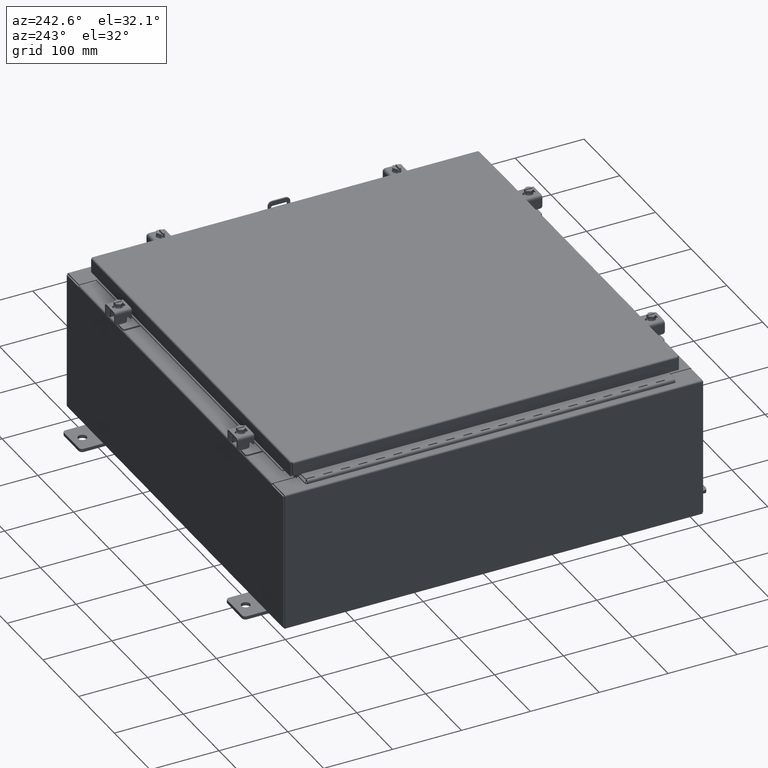
[diagram: clean part render]
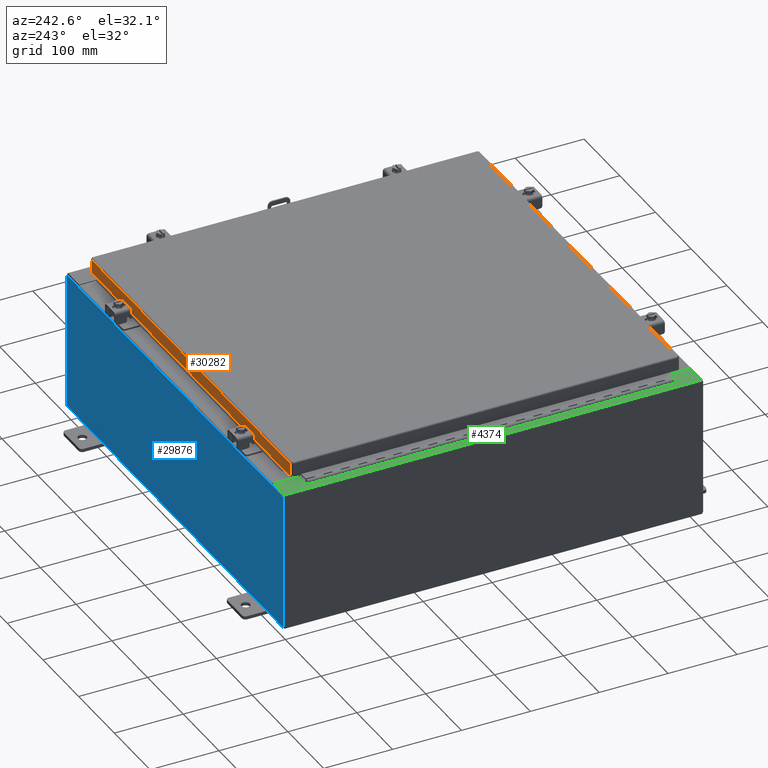
[diagram: same view with three faces highlighted in distinct colors, each labeled with its STEP entity id]
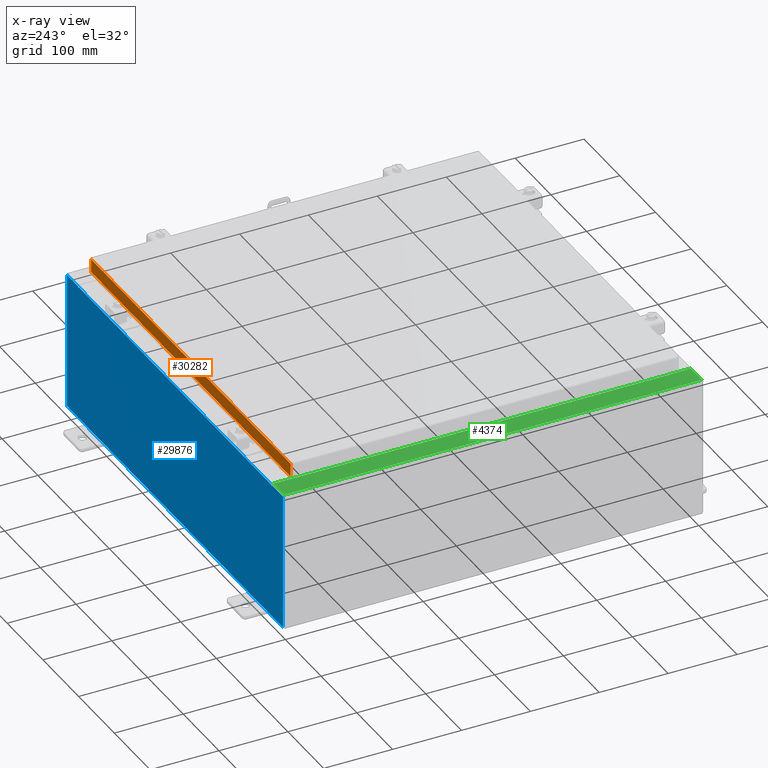
[diagram: x-ray of the same camera — body ghosted, the three highlighted faces saturated]
A machine part, auxiliary view with three faces highlighted in distinct colors.
The next image is the same camera in x-ray (body ghosted, the three faces saturated) — at least one of them is partly hidden behind the body in this view.
Their STEP definitions:

[orange] entity #30282 — the highlighted planar face has unit normal (0, -1, -0).
#222 = EDGE_CURVE ( 'NONE', #4338, #10976, #31821, .T. ) ;
#322 = ORIENTED_EDGE ( 'NONE', *, *, #9019, .F. ) ;
#807 = VERTEX_POINT ( 'NONE', #2444 ) ;
#1117 = DIRECTION ( 'NONE',  ( 1.000000000000000000, -4.379057701015054300E-047, 1.233005954894504400E-016 ) ) ;
#1363 = VECTOR ( 'NONE', #15416, 39.37007874015748100 ) ;
#1379 = CARTESIAN_POINT ( 'NONE',  ( -11.07799999999999900, 11.09399999999999800, -0.08770000000000026400 ) ) ;
#2060 = DIRECTION ( 'NONE',  ( -0.0000000000000000000, 2.818880942772350300E-015, -1.000000000000000000 ) ) ;
#2444 = CARTESIAN_POINT ( 'NONE',  ( 10.23915786437625500, 11.09399999999999200, -0.8500000000000043100 ) ) ;
#2773 = VERTEX_POINT ( 'NONE', #14886 ) ;
#3407 = DIRECTION ( 'NONE',  ( 1.000000000000000000, -0.0000000000000000000, -0.0000000000000000000 ) ) ;
#3988 = CARTESIAN_POINT ( 'NONE',  ( -10.98915786437626700, 11.09399999999999900, -0.8500000000000020900 ) ) ;
#4338 = VERTEX_POINT ( 'NONE', #3988 ) ;
#4433 = VECTOR ( 'NONE', #1117, 39.37007874015748100 ) ;
#5156 = VERTEX_POINT ( 'NONE', #16785 ) ;
#6537 = LINE ( 'NONE', #22475, #13193 ) ;
#6555 = LINE ( 'NONE', #1379, #25771 ) ;
#7638 = CARTESIAN_POINT ( 'NONE',  ( 0.0000000000000000000, 11.09399999999999800, 3.168943672650545400E-014 ) ) ;
#8552 = ORIENTED_EDGE ( 'NONE', *, *, #11383, .F. ) ;
#8657 = VECTOR ( 'NONE', #3407, 39.37007874015748100 ) ;
#9019 = EDGE_CURVE ( 'NONE', #10976, #807, #21976, .T. ) ;
#10976 = VERTEX_POINT ( 'NONE', #27293 ) ;
#11383 = EDGE_CURVE ( 'NONE', #13034, #4338, #6537, .T. ) ;
#12221 = VECTOR ( 'NONE', #26454, 39.37007874015748100 ) ;
#12652 = DIRECTION ( 'NONE',  ( 0.0000000000000000000, 2.818880942772350300E-015, -1.000000000000000000 ) ) ;
#13034 = VERTEX_POINT ( 'NONE', #21985 ) ;
#13193 = VECTOR ( 'NONE', #2060, 39.37007874015748100 ) ;
#14322 = EDGE_CURVE ( 'NONE', #5156, #2773, #18859, .T. ) ;
#14886 = CARTESIAN_POINT ( 'NONE',  ( 10.98915786437626700, 11.09399999999999900, -0.8499999999999999800 ) ) ;
#15055 = FACE_OUTER_BOUND ( 'NONE', #24802, .T. ) ;
#15416 = DIRECTION ( 'NONE',  ( 1.000000000000000000, -4.379057701015054300E-047, 1.233005954894504400E-016 ) ) ;
#15610 = AXIS2_PLACEMENT_3D ( 'NONE', #7638, #27665, #12652 ) ;
#15626 = EDGE_CURVE ( 'NONE', #5156, #13034, #6555, .T. ) ;
#16785 = CARTESIAN_POINT ( 'NONE',  ( 10.98915786437626700, 11.09399999999999800, -0.08770000000000026400 ) ) ;
#18859 = LINE ( 'NONE', #21417, #12221 ) ;
#20578 = ORIENTED_EDGE ( 'NONE', *, *, #15626, .F. ) ;
#21417 = CARTESIAN_POINT ( 'NONE',  ( 10.98915786437626700, 11.09399999999999800, 3.168943672650545400E-014 ) ) ;
#21976 = LINE ( 'NONE', #28357, #8657 ) ;
#21985 = CARTESIAN_POINT ( 'NONE',  ( -10.98915786437626700, 11.09399999999999800, -0.08770000000000026400 ) ) ;
#22087 = EDGE_CURVE ( 'NONE', #807, #2773, #27270, .T. ) ;
#22327 = ORIENTED_EDGE ( 'NONE', *, *, #222, .F. ) ;
#22475 = CARTESIAN_POINT ( 'NONE',  ( -10.98915786437626700, 11.09399999999999800, -0.07470000000000015500 ) ) ;
#23245 = ORIENTED_EDGE ( 'NONE', *, *, #14322, .T. ) ;
#24802 = EDGE_LOOP ( 'NONE', ( #20578, #23245, #27312, #322, #22327, #8552 ) ) ;
#25158 = PLANE ( 'NONE',  #15610 ) ;
#25771 = VECTOR ( 'NONE', #28977, 39.37007874015748100 ) ;
#26454 = DIRECTION ( 'NONE',  ( 0.0000000000000000000, 2.818880942772350300E-015, -1.000000000000000000 ) ) ;
#27270 = LINE ( 'NONE', #30398, #1363 ) ;
#27293 = CARTESIAN_POINT ( 'NONE',  ( -10.23915786437626700, 11.09399999999999200, -0.8500000000000043100 ) ) ;
#27312 = ORIENTED_EDGE ( 'NONE', *, *, #22087, .F. ) ;
#27665 = DIRECTION ( 'NONE',  ( 3.475696988576941300E-031, -1.000000000000000000, -2.818880942772350300E-015 ) ) ;
#28357 = CARTESIAN_POINT ( 'NONE',  ( -10.23915786437626200, 11.09399999999999200, -0.8500000000000043100 ) ) ;
#28977 = DIRECTION ( 'NONE',  ( -1.000000000000000000, -3.475696988576942200E-031, -9.473942235605600700E-046 ) ) ;
#30282 = ADVANCED_FACE ( 'NONE', ( #15055 ), #25158, .F. ) ;
#30398 = CARTESIAN_POINT ( 'NONE',  ( -11.07799999999999900, 11.09399999999999900, -0.8500000000000020900 ) ) ;
#31792 = CARTESIAN_POINT ( 'NONE',  ( -11.07799999999999900, 11.09399999999999900, -0.8500000000000020900 ) ) ;
#31821 = LINE ( 'NONE', #31792, #4433 ) ;

[blue] entity #29876 — the highlighted planar face has unit normal (0, -1, 0).
#251 = EDGE_CURVE ( 'NONE', #9891, #8948, #24424, .T. ) ;
#342 = DIRECTION ( 'NONE',  ( 1.000000000000000000, 0.0000000000000000000, 0.0000000000000000000 ) ) ;
#1255 = DIRECTION ( 'NONE',  ( -0.0000000000000000000, 1.000000000000000000, -0.0000000000000000000 ) ) ;
#1323 = AXIS2_PLACEMENT_3D ( 'NONE', #19005, #1255, #11841 ) ;
#1415 = CARTESIAN_POINT ( 'NONE',  ( -10.63720000000000400, 0.0000000000000000000, 3.912300000000000100 ) ) ;
#1509 = EDGE_CURVE ( 'NONE', #12415, #30743, #14196, .T. ) ;
#1593 = ORIENTED_EDGE ( 'NONE', *, *, #12165, .F. ) ;
#2224 = CARTESIAN_POINT ( 'NONE',  ( -10.67455000000000200, 0.0000000000000000000, 0.0000000000000000000 ) ) ;
#2289 = VECTOR ( 'NONE', #17843, 39.37007874015748100 ) ;
#3653 = VECTOR ( 'NONE', #9185, 39.37007874015748100 ) ;
#4621 = ORIENTED_EDGE ( 'NONE', *, *, #27464, .T. ) ;
#4637 = DIRECTION ( 'NONE',  ( 1.000000000000000000, 0.0000000000000000000, 0.0000000000000000000 ) ) ;
#4653 = DIRECTION ( 'NONE',  ( 0.0000000000000000000, 0.0000000000000000000, 1.000000000000000000 ) ) ;
#4779 = VECTOR ( 'NONE', #30101, 39.37007874015748100 ) ;
#5331 = LINE ( 'NONE', #16549, #17839 ) ;
#5613 = LINE ( 'NONE', #2224, #26379 ) ;
#6088 = FACE_OUTER_BOUND ( 'NONE', #10020, .T. ) ;
#6182 = LINE ( 'NONE', #22317, #31997 ) ;
#6559 = CARTESIAN_POINT ( 'NONE',  ( 10.63720000000000400, 0.0000000000000000000, 3.912300000000000100 ) ) ;
#7115 = EDGE_CURVE ( 'NONE', #22743, #8356, #8845, .T. ) ;
#7914 = CARTESIAN_POINT ( 'NONE',  ( 11.92530000000000000, 0.0000000000000000000, 3.925300000000000500 ) ) ;
#7934 = EDGE_CURVE ( 'NONE', #26040, #15652, #16903, .T. ) ;
#8032 = EDGE_CURVE ( 'NONE', #12415, #31780, #22033, .T. ) ;
#8191 = EDGE_CURVE ( 'NONE', #23772, #9891, #17290, .T. ) ;
#8356 = VERTEX_POINT ( 'NONE', #14523 ) ;
#8845 = CIRCLE ( 'NONE', #1323, 0.01867499999999949400 ) ;
#8948 = VERTEX_POINT ( 'NONE', #12609 ) ;
#9139 = VECTOR ( 'NONE', #20208, 39.37007874015748100 ) ;
#9185 = DIRECTION ( 'NONE',  ( 1.000000000000000000, 0.0000000000000000000, 0.0000000000000000000 ) ) ;
#9761 = CARTESIAN_POINT ( 'NONE',  ( -11.92530000000000000, 0.0000000000000000000, -3.925299999999999600 ) ) ;
#9891 = VERTEX_POINT ( 'NONE', #17481 ) ;
#9936 = AXIS2_PLACEMENT_3D ( 'NONE', #29228, #14229, #31734 ) ;
#10020 = EDGE_LOOP ( 'NONE', ( #17101, #22738, #23600, #24205, #18648, #16408, #1593, #29030, #4621, #21091, #27544, #24107 ) ) ;
#11057 = VECTOR ( 'NONE', #342, 39.37007874015748100 ) ;
#11841 = DIRECTION ( 'NONE',  ( 0.0000000000000000000, 0.0000000000000000000, -1.000000000000000000 ) ) ;
#12165 = EDGE_CURVE ( 'NONE', #26040, #22743, #5331, .T. ) ;
#12415 = VERTEX_POINT ( 'NONE', #27947 ) ;
#12609 = CARTESIAN_POINT ( 'NONE',  ( -10.67455000000000200, 0.0000000000000000000, 3.925300000000000500 ) ) ;
#13543 = DIRECTION ( 'NONE',  ( 0.0000000000000000000, -1.000000000000000000, 0.0000000000000000000 ) ) ;
#14196 = LINE ( 'NONE', #18045, #9139 ) ;
#14229 = DIRECTION ( 'NONE',  ( -0.0000000000000000000, 1.000000000000000000, -0.0000000000000000000 ) ) ;
#14523 = CARTESIAN_POINT ( 'NONE',  ( 10.63720000000000400, 0.0000000000000000000, 3.874949999999999200 ) ) ;
#15023 = CIRCLE ( 'NONE', #9936, 0.01867499999999949400 ) ;
#15652 = VERTEX_POINT ( 'NONE', #24192 ) ;
#16408 = ORIENTED_EDGE ( 'NONE', *, *, #7115, .F. ) ;
#16549 = CARTESIAN_POINT ( 'NONE',  ( 10.67454999999983300, 0.0000000000000000000, -4.633214197254590000E-013 ) ) ;
#16903 = LINE ( 'NONE', #30791, #11057 ) ;
#17101 = ORIENTED_EDGE ( 'NONE', *, *, #24886, .F. ) ;
#17290 = LINE ( 'NONE', #20277, #4779 ) ;
#17481 = CARTESIAN_POINT ( 'NONE',  ( -11.92530000000000000, 0.0000000000000000000, 3.925300000000000500 ) ) ;
#17542 = LINE ( 'NONE', #29276, #22661 ) ;
#17696 = VERTEX_POINT ( 'NONE', #26360 ) ;
#17839 = VECTOR ( 'NONE', #26599, 39.37007874015748100 ) ;
#17843 = DIRECTION ( 'NONE',  ( 0.0000000000000000000, 0.0000000000000000000, -1.000000000000000000 ) ) ;
#18045 = CARTESIAN_POINT ( 'NONE',  ( -10.63720000000000400, 0.0000000000000000000, 0.0000000000000000000 ) ) ;
#18386 = EDGE_CURVE ( 'NONE', #30743, #17696, #15023, .T. ) ;
#18461 = CARTESIAN_POINT ( 'NONE',  ( 0.0000000000000000000, 0.0000000000000000000, 0.0000000000000000000 ) ) ;
#18648 = ORIENTED_EDGE ( 'NONE', *, *, #28451, .F. ) ;
#19005 = CARTESIAN_POINT ( 'NONE',  ( 10.65587500000000200, 0.0000000000000000000, 3.874949999999999200 ) ) ;
#20208 = DIRECTION ( 'NONE',  ( 0.0000000000000000000, 0.0000000000000000000, -1.000000000000000000 ) ) ;
#20277 = CARTESIAN_POINT ( 'NONE',  ( -11.92530000000000000, 0.0000000000000000000, 3.925300000000000500 ) ) ;
#21091 = ORIENTED_EDGE ( 'NONE', *, *, #28323, .T. ) ;
#21233 = VECTOR ( 'NONE', #4637, 39.37007874015748100 ) ;
#22033 = LINE ( 'NONE', #1415, #21233 ) ;
#22234 = CARTESIAN_POINT ( 'NONE',  ( 10.67455000000000200, 0.0000000000000000000, 3.925300000000000500 ) ) ;
#22317 = CARTESIAN_POINT ( 'NONE',  ( 10.63720000000000400, 0.0000000000000000000, 0.0000000000000000000 ) ) ;
#22661 = VECTOR ( 'NONE', #31774, 39.37007874015748100 ) ;
#22738 = ORIENTED_EDGE ( 'NONE', *, *, #18386, .F. ) ;
#22743 = VERTEX_POINT ( 'NONE', #22858 ) ;
#22858 = CARTESIAN_POINT ( 'NONE',  ( 10.67455000000000200, 0.0000000000000000000, 3.874949999999999200 ) ) ;
#23600 = ORIENTED_EDGE ( 'NONE', *, *, #1509, .F. ) ;
#23772 = VERTEX_POINT ( 'NONE', #9761 ) ;
#23940 = CARTESIAN_POINT ( 'NONE',  ( -11.92530000000000000, 0.0000000000000000000, 3.925300000000000500 ) ) ;
#24107 = ORIENTED_EDGE ( 'NONE', *, *, #251, .T. ) ;
#24192 = CARTESIAN_POINT ( 'NONE',  ( 11.92530000000000000, 0.0000000000000000000, 3.925300000000000500 ) ) ;
#24205 = ORIENTED_EDGE ( 'NONE', *, *, #8032, .T. ) ;
#24424 = LINE ( 'NONE', #23940, #3653 ) ;
#24886 = EDGE_CURVE ( 'NONE', #17696, #8948, #5613, .T. ) ;
#25791 = CARTESIAN_POINT ( 'NONE',  ( 11.92530000000000000, 0.0000000000000000000, -3.925299999999999600 ) ) ;
#26040 = VERTEX_POINT ( 'NONE', #22234 ) ;
#26360 = CARTESIAN_POINT ( 'NONE',  ( -10.67455000000000200, 0.0000000000000000000, 3.874949999999999200 ) ) ;
#26379 = VECTOR ( 'NONE', #4653, 39.37007874015748100 ) ;
#26599 = DIRECTION ( 'NONE',  ( -4.340572780400004900E-014, 0.0000000000000000000, -1.000000000000000000 ) ) ;
#26934 = VERTEX_POINT ( 'NONE', #25791 ) ;
#27464 = EDGE_CURVE ( 'NONE', #15652, #26934, #28167, .T. ) ;
#27544 = ORIENTED_EDGE ( 'NONE', *, *, #8191, .T. ) ;
#27947 = CARTESIAN_POINT ( 'NONE',  ( -10.63720000000000400, 0.0000000000000000000, 3.912300000000000100 ) ) ;
#28167 = LINE ( 'NONE', #7914, #2289 ) ;
#28323 = EDGE_CURVE ( 'NONE', #26934, #23772, #17542, .T. ) ;
#28451 = EDGE_CURVE ( 'NONE', #8356, #31780, #6182, .T. ) ;
#28535 = PLANE ( 'NONE',  #30262 ) ;
#29030 = ORIENTED_EDGE ( 'NONE', *, *, #7934, .T. ) ;
#29228 = CARTESIAN_POINT ( 'NONE',  ( -10.65587500000000200, 0.0000000000000000000, 3.874949999999999200 ) ) ;
#29276 = CARTESIAN_POINT ( 'NONE',  ( -11.92530000000000000, 0.0000000000000000000, -3.925299999999999600 ) ) ;
#29465 = CARTESIAN_POINT ( 'NONE',  ( -10.63720000000000400, 0.0000000000000000000, 3.874949999999999200 ) ) ;
#29876 = ADVANCED_FACE ( 'NONE', ( #6088 ), #28535, .F. ) ;
#30101 = DIRECTION ( 'NONE',  ( -0.0000000000000000000, -0.0000000000000000000, 1.000000000000000000 ) ) ;
#30262 = AXIS2_PLACEMENT_3D ( 'NONE', #18461, #13543, #31030 ) ;
#30743 = VERTEX_POINT ( 'NONE', #29465 ) ;
#30791 = CARTESIAN_POINT ( 'NONE',  ( -11.92530000000000000, 0.0000000000000000000, 3.925300000000000500 ) ) ;
#31030 = DIRECTION ( 'NONE',  ( 0.0000000000000000000, -0.0000000000000000000, -1.000000000000000000 ) ) ;
#31734 = DIRECTION ( 'NONE',  ( 0.0000000000000000000, 0.0000000000000000000, -1.000000000000000000 ) ) ;
#31774 = DIRECTION ( 'NONE',  ( -1.000000000000000000, -0.0000000000000000000, -0.0000000000000000000 ) ) ;
#31780 = VERTEX_POINT ( 'NONE', #6559 ) ;
#31997 = VECTOR ( 'NONE', #32340, 39.37007874015748100 ) ;
#32340 = DIRECTION ( 'NONE',  ( 0.0000000000000000000, 0.0000000000000000000, 1.000000000000000000 ) ) ;

[green] entity #4374 — the highlighted planar face has unit normal (0, 0, -1).
#1027 = ORIENTED_EDGE ( 'NONE', *, *, #15121, .F. ) ;
#1030 = EDGE_CURVE ( 'NONE', #1554, #13699, #1687, .T. ) ;
#1554 = VERTEX_POINT ( 'NONE', #11584 ) ;
#1687 = LINE ( 'NONE', #13233, #26786 ) ;
#1825 = DIRECTION ( 'NONE',  ( 1.000000000000000000, 0.0000000000000000000, 2.170286390199955400E-014 ) ) ;
#1966 = CARTESIAN_POINT ( 'NONE',  ( -10.75005000000003400, 10.61242499999999800, 7.925300000000006200 ) ) ;
#2256 = CARTESIAN_POINT ( 'NONE',  ( -10.75005000000003400, 10.63109999999999600, 7.925300000000008900 ) ) ;
#3112 = LINE ( 'NONE', #13792, #28932 ) ;
#3416 = LINE ( 'NONE', #4363, #29236 ) ;
#3861 = EDGE_CURVE ( 'NONE', #9844, #6634, #3112, .T. ) ;
#3969 = CARTESIAN_POINT ( 'NONE',  ( -5.679009539024888300E-014, 11.92529999999999800, 7.925300000000085300 ) ) ;
#4038 = EDGE_CURVE ( 'NONE', #30310, #13406, #5053, .T. ) ;
#4363 = CARTESIAN_POINT ( 'NONE',  ( -10.75005000000003400, -10.63109999999998800, 7.925300000000006200 ) ) ;
#4374 = ADVANCED_FACE ( 'NONE', ( #23853 ), #22875, .F. ) ;
#4443 = VERTEX_POINT ( 'NONE', #16143 ) ;
#4513 = DIRECTION ( 'NONE',  ( 1.000000000000000000, 0.0000000000000000000, 0.0000000000000000000 ) ) ;
#4832 = ORIENTED_EDGE ( 'NONE', *, *, #18457, .F. ) ;
#5053 = LINE ( 'NONE', #12082, #18357 ) ;
#5068 = CARTESIAN_POINT ( 'NONE',  ( -10.69970000000003200, 0.0000000000000000000, 7.925300000000008900 ) ) ;
#5441 = CARTESIAN_POINT ( 'NONE',  ( -10.75005000000003400, 10.59374999999999800, 7.925300000000008900 ) ) ;
#5443 = LINE ( 'NONE', #3969, #31236 ) ;
#5603 = LINE ( 'NONE', #26554, #19672 ) ;
#5899 = ORIENTED_EDGE ( 'NONE', *, *, #18213, .T. ) ;
#5984 = VERTEX_POINT ( 'NONE', #9584 ) ;
#6634 = VERTEX_POINT ( 'NONE', #2256 ) ;
#7158 = EDGE_CURVE ( 'NONE', #1554, #19353, #20577, .T. ) ;
#7220 = VECTOR ( 'NONE', #10987, 39.37007874015748100 ) ;
#7260 = DIRECTION ( 'NONE',  ( -7.132762385546384700E-015, -0.0000000000000000000, 1.000000000000000000 ) ) ;
#7356 = CARTESIAN_POINT ( 'NONE',  ( -10.71270000000003500, -10.59374999999998900, 7.925300000000006200 ) ) ;
#7814 = ORIENTED_EDGE ( 'NONE', *, *, #4038, .F. ) ;
#8467 = VECTOR ( 'NONE', #10726, 39.37007874015748100 ) ;
#9584 = CARTESIAN_POINT ( 'NONE',  ( -10.75005000000003400, -10.63109999999998800, 7.925300000000008900 ) ) ;
#9592 = LINE ( 'NONE', #23491, #7220 ) ;
#9668 = VERTEX_POINT ( 'NONE', #5441 ) ;
#9844 = VERTEX_POINT ( 'NONE', #13039 ) ;
#9952 = DIRECTION ( 'NONE',  ( -1.000000000000000000, 0.0000000000000000000, -7.132762385546384700E-015 ) ) ;
#10181 = DIRECTION ( 'NONE',  ( 7.132762385546384700E-015, 0.0000000000000000000, -1.000000000000000000 ) ) ;
#10237 = CARTESIAN_POINT ( 'NONE',  ( -11.91230000000003200, 11.92529999999999800, 7.925300000000000000 ) ) ;
#10726 = DIRECTION ( 'NONE',  ( 1.000000000000000000, 0.0000000000000000000, 0.0000000000000000000 ) ) ;
#10987 = DIRECTION ( 'NONE',  ( 0.0000000000000000000, 1.000000000000000000, 0.0000000000000000000 ) ) ;
#11151 = CARTESIAN_POINT ( 'NONE',  ( -10.69970000000003200, -11.92530000000000000, 7.925300000000008900 ) ) ;
#11274 = VERTEX_POINT ( 'NONE', #11686 ) ;
#11584 = CARTESIAN_POINT ( 'NONE',  ( -11.91230000000003200, -11.92530000000000000, 7.925300000000000000 ) ) ;
#11631 = DIRECTION ( 'NONE',  ( -0.0000000000000000000, 1.000000000000000000, -0.0000000000000000000 ) ) ;
#11686 = CARTESIAN_POINT ( 'NONE',  ( -10.69970000000003200, -10.63109999999999100, 7.925300000000008900 ) ) ;
#12082 = CARTESIAN_POINT ( 'NONE',  ( -10.71270000000003500, 10.59374999999999300, 7.925300000000006200 ) ) ;
#12720 = EDGE_LOOP ( 'NONE', ( #14820, #5899, #16968, #32211, #23702, #22372, #17010, #1027, #28750, #7814, #20816, #4832 ) ) ;
#13039 = CARTESIAN_POINT ( 'NONE',  ( -10.69970000000003200, 10.63109999999999600, 7.925300000000008900 ) ) ;
#13233 = CARTESIAN_POINT ( 'NONE',  ( -5.679009539024888300E-014, -11.92530000000000000, 7.925300000000085300 ) ) ;
#13406 = VERTEX_POINT ( 'NONE', #7356 ) ;
#13699 = VERTEX_POINT ( 'NONE', #11151 ) ;
#13792 = CARTESIAN_POINT ( 'NONE',  ( -10.69970000000003200, 10.63109999999999600, 7.925300000000007100 ) ) ;
#14009 = AXIS2_PLACEMENT_3D ( 'NONE', #22282, #7260, #24787 ) ;
#14021 = DIRECTION ( 'NONE',  ( -1.000000000000000000, 0.0000000000000000000, -7.132762385546384700E-015 ) ) ;
#14820 = ORIENTED_EDGE ( 'NONE', *, *, #3861, .F. ) ;
#14925 = EDGE_CURVE ( 'NONE', #30080, #19353, #5443, .T. ) ;
#15121 = EDGE_CURVE ( 'NONE', #4443, #5984, #19890, .T. ) ;
#15273 = CARTESIAN_POINT ( 'NONE',  ( -10.71270000000003500, 10.59374999999999800, 7.925300000000006200 ) ) ;
#15716 = EDGE_CURVE ( 'NONE', #5984, #11274, #3416, .T. ) ;
#16143 = CARTESIAN_POINT ( 'NONE',  ( -10.75005000000003400, -10.59374999999998900, 7.925300000000008900 ) ) ;
#16968 = ORIENTED_EDGE ( 'NONE', *, *, #14925, .T. ) ;
#17010 = ORIENTED_EDGE ( 'NONE', *, *, #15716, .F. ) ;
#18213 = EDGE_CURVE ( 'NONE', #9844, #30080, #9592, .T. ) ;
#18357 = VECTOR ( 'NONE', #23831, 39.37007874015748100 ) ;
#18457 = EDGE_CURVE ( 'NONE', #6634, #9668, #20117, .T. ) ;
#19082 = DIRECTION ( 'NONE',  ( -1.000000000000000000, 0.0000000000000000000, 0.0000000000000000000 ) ) ;
#19312 = EDGE_CURVE ( 'NONE', #13699, #11274, #29830, .T. ) ;
#19353 = VERTEX_POINT ( 'NONE', #10237 ) ;
#19489 = DIRECTION ( 'NONE',  ( -7.132762385546384700E-015, -0.0000000000000000000, 1.000000000000000000 ) ) ;
#19672 = VECTOR ( 'NONE', #19082, 39.37007874015748100 ) ;
#19890 = CIRCLE ( 'NONE', #14009, 0.01867499999999949400 ) ;
#19971 = AXIS2_PLACEMENT_3D ( 'NONE', #1966, #19489, #4513 ) ;
#20052 = DIRECTION ( 'NONE',  ( 0.0000000000000000000, 1.000000000000000000, 0.0000000000000000000 ) ) ;
#20117 = CIRCLE ( 'NONE', #19971, 0.01867499999999949400 ) ;
#20577 = LINE ( 'NONE', #29069, #21371 ) ;
#20816 = ORIENTED_EDGE ( 'NONE', *, *, #29800, .F. ) ;
#21371 = VECTOR ( 'NONE', #11631, 39.37007874015748100 ) ;
#22282 = CARTESIAN_POINT ( 'NONE',  ( -10.75005000000003400, -10.61242499999998900, 7.925300000000006200 ) ) ;
#22292 = CARTESIAN_POINT ( 'NONE',  ( -5.679009539024888300E-014, 0.0000000000000000000, 7.925300000000085300 ) ) ;
#22372 = ORIENTED_EDGE ( 'NONE', *, *, #19312, .T. ) ;
#22875 = PLANE ( 'NONE',  #28370 ) ;
#23491 = CARTESIAN_POINT ( 'NONE',  ( -10.69970000000003200, 0.0000000000000000000, 7.925300000000008900 ) ) ;
#23702 = ORIENTED_EDGE ( 'NONE', *, *, #1030, .T. ) ;
#23831 = DIRECTION ( 'NONE',  ( -0.0000000000000000000, -1.000000000000000000, -0.0000000000000000000 ) ) ;
#23853 = FACE_OUTER_BOUND ( 'NONE', #12720, .T. ) ;
#24268 = CARTESIAN_POINT ( 'NONE',  ( -10.69970000000003200, 11.92529999999999800, 7.925300000000008900 ) ) ;
#24787 = DIRECTION ( 'NONE',  ( 1.000000000000000000, 0.0000000000000000000, 0.0000000000000000000 ) ) ;
#26554 = CARTESIAN_POINT ( 'NONE',  ( -10.71270000000003500, -10.59374999999998900, 7.925300000000006200 ) ) ;
#26786 = VECTOR ( 'NONE', #29856, 39.37007874015748100 ) ;
#27651 = LINE ( 'NONE', #28233, #8467 ) ;
#27931 = DIRECTION ( 'NONE',  ( -1.000000000000000000, 0.0000000000000000000, -2.170286390199955400E-014 ) ) ;
#28233 = CARTESIAN_POINT ( 'NONE',  ( -10.75005000000003400, 10.59374999999999800, 7.925300000000006200 ) ) ;
#28370 = AXIS2_PLACEMENT_3D ( 'NONE', #22292, #10181, #9952 ) ;
#28750 = ORIENTED_EDGE ( 'NONE', *, *, #32421, .F. ) ;
#28932 = VECTOR ( 'NONE', #27931, 39.37007874015748100 ) ;
#29049 = VECTOR ( 'NONE', #20052, 39.37007874015748100 ) ;
#29069 = CARTESIAN_POINT ( 'NONE',  ( -11.91230000000003200, 11.92529999999999800, 7.925300000000000000 ) ) ;
#29236 = VECTOR ( 'NONE', #1825, 39.37007874015748100 ) ;
#29800 = EDGE_CURVE ( 'NONE', #9668, #30310, #27651, .T. ) ;
#29830 = LINE ( 'NONE', #5068, #29049 ) ;
#29856 = DIRECTION ( 'NONE',  ( 1.000000000000000000, -0.0000000000000000000, 7.132762385546384700E-015 ) ) ;
#30080 = VERTEX_POINT ( 'NONE', #24268 ) ;
#30310 = VERTEX_POINT ( 'NONE', #15273 ) ;
#31236 = VECTOR ( 'NONE', #14021, 39.37007874015748100 ) ;
#32211 = ORIENTED_EDGE ( 'NONE', *, *, #7158, .F. ) ;
#32421 = EDGE_CURVE ( 'NONE', #13406, #4443, #5603, .T. ) ;